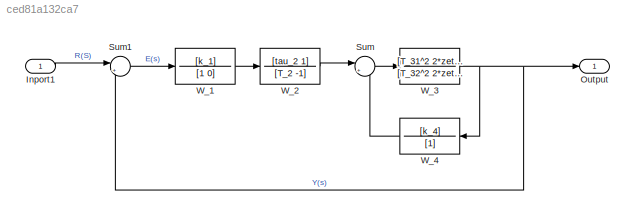
MODEL slx_ced81a132ca7
KIND model
CONFIG AbsTol = auto
CONFIG EnableMultiTasking = off
CONFIG FixedStep = auto
CONFIG InitFcn = tau = 0.01
CONFIG MaxStep = auto
CONFIG MinStep = auto
CONFIG RelTol = 1e-3
CONFIG SampleTimeConstraint = Unconstrained
CONFIG SolverName = VariableStepAuto
CONFIG StartTime = 0.0
CONFIG StopTime = 10.0
BLOCK [Inport] Inport1
BLOCK [Outport] Output
BLOCK [Sum] Sum
  Inputs = |+-
  Ports = [2, 1]
BLOCK [Sum] Sum1
  Inputs = |+-
  Ports = [2, 1]
BLOCK [TransferFcn] W_1
  Denominator = [1 0]
  Numerator = [k_1]
BLOCK [TransferFcn] W_2
  Denominator = [T_2 -1]
  Numerator = [tau_2 1]
BLOCK [TransferFcn] W_3
  Denominator = [T_32^2 2*zeta_32*T_32 1]
  Numerator = [T_31^2 2*zeta_31*T_31 1]
BLOCK [TransferFcn] W_4
  Denominator = [1]
  Numerator = [k_4]
LINE Inport1:1 -> Sum1:1
LINE Sum1:1 -> W_1:1
LINE Sum:1 -> W_3:1
LINE W_1:1 -> W_2:1
LINE W_2:1 -> Sum:1
NET W_3:1 -> Output:1, Sum1:2, W_4:1
LINE W_4:1 -> Sum:2
note: NET lines group one-source signal fan-out (src -> all destinations, sorted); 1:1 wires keep LINE
